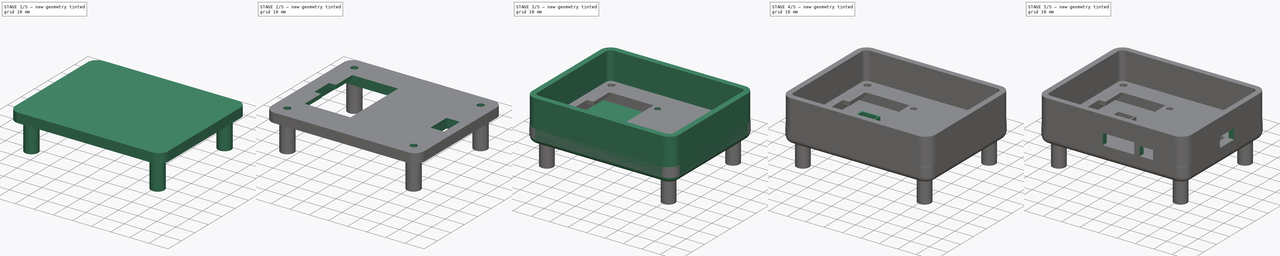
[diagram: build sequence overview — one tinted view per stage of 5, left to right]
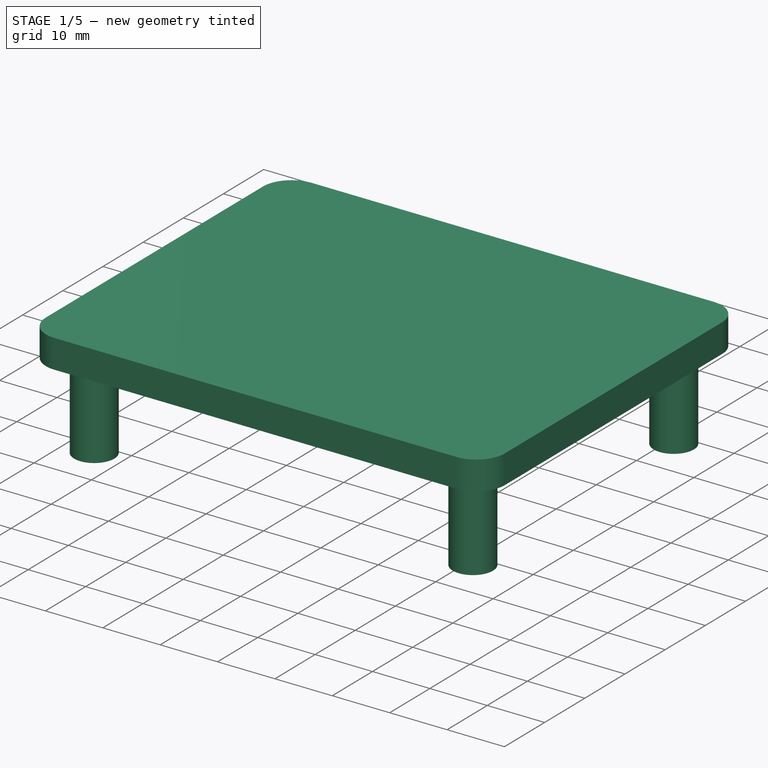
[diagram: stage 1 of 5 — iso view after this stage's code; geometry added in this stage tinted green]
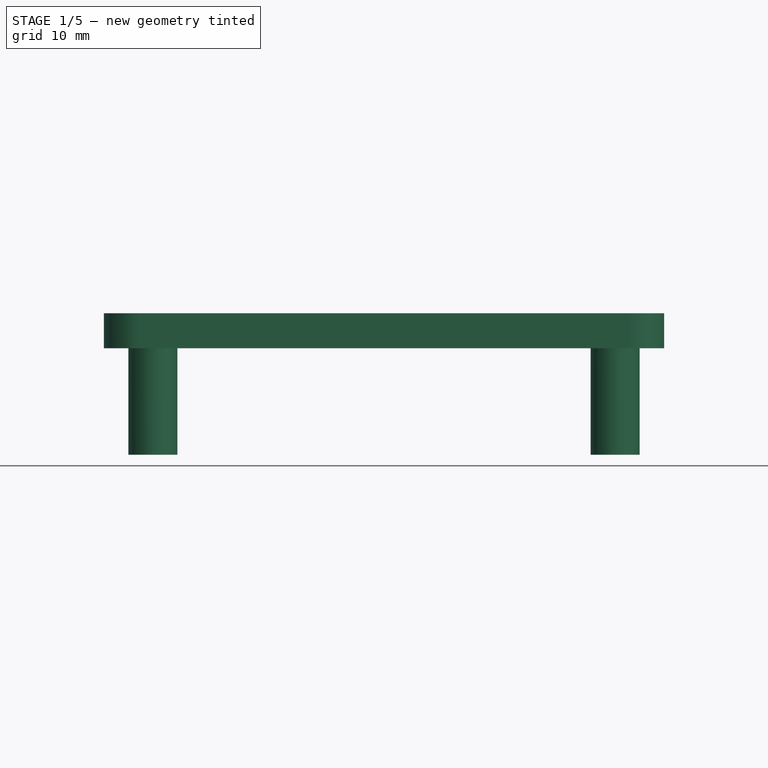
[diagram: stage 1 of 5 — front view after this stage's code; geometry added in this stage tinted green]
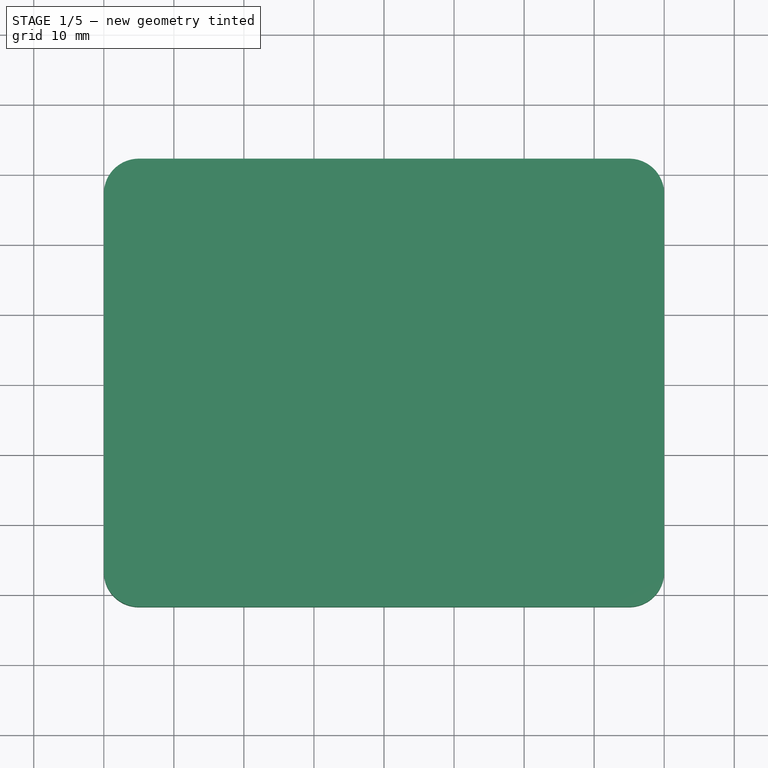
[diagram: stage 1 of 5 — top view after this stage's code; geometry added in this stage tinted green]
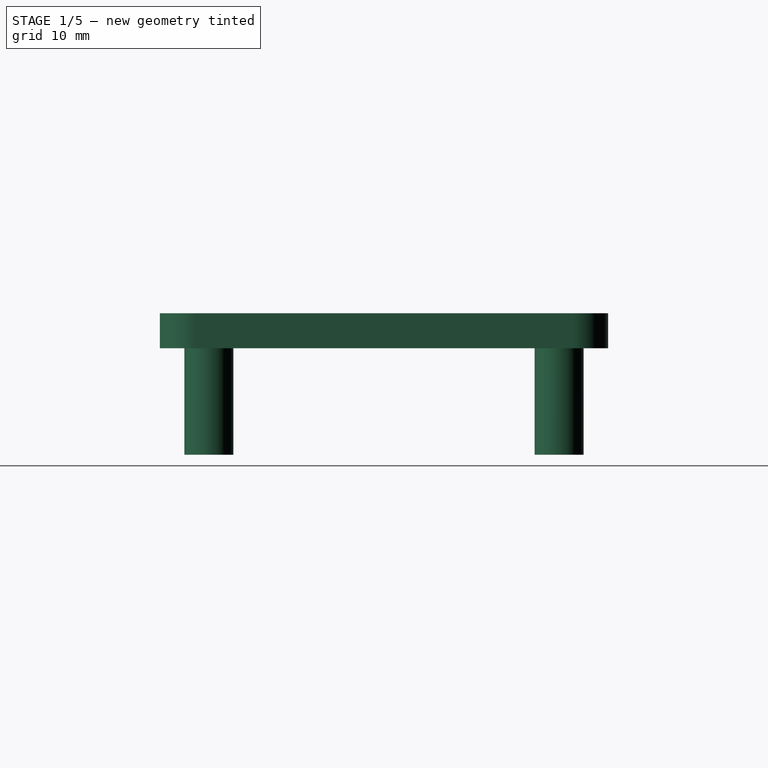
[diagram: stage 1 of 5 — right view after this stage's code; geometry added in this stage tinted green]
FCSTD DOCUMENT  (FreeCAD 0.20R29603 (Git))
Label: pcb_box_top
License: All rights reserved
LicenseURL: http://en.wikipedia.org/wiki/All_rights_reserved
objects: Part::Feature×55, App::Part×55, Sketcher::SketchObject×13, PartDesign::Pocket×6, PartDesign::Pad×5, PartDesign::Hole×4, PartDesign::Body×2, PartDesign::Mirrored×2, Spreadsheet::Sheet×1, PartDesign::Thickness×1, PartDesign::MultiTransform×1
note: 105 computed .brp shape members not serialized (recipe doc carries the construction recipe); baked Part::Feature solids carry a one-line shape summary decoded from their .brp

FEATURE [PartDesign::Body] Body
  Group = -> [Sketch,Pad,Thickness,Sketch001,Pad001,Hole,Sketch002,Pad002,Sketch003,Hole001,Sketch004,Pocket,Sketch005,Pocket001,Sketch006,Pocket002]
  Origin = -> Origin
  Tip = -> Pocket002
FEATURE [Part::Feature] Part__Feature  label="SOLID"
  shape: bbox 1.6 x 0.8 x 1.1 mm, 50 faces (baked)
FEATURE [App::Part] LED_0603_1608Metric
  Group = -> [Part__Feature]
  Origin = -> Origin001
  Placement = pos=(55.2,18.76,1.63) rot=(0,0,-1;1.5708rad)
FEATURE [Part::Feature] Part__Feature001  label="SOLID001"
  shape: bbox 1 x 0.5 x 0.35 mm, 26 faces (baked)
FEATURE [App::Part] R_0402_1005Metric
  Group = -> [Part__Feature001]
  Origin = -> Origin002
  Placement = pos=(32.152,20.312,1.63) rot=(0,0,1;3.14159rad)
FEATURE [Part::Feature] Part__Feature002  label="SOLID002"
  shape: bbox 7.3 x 4.627 x 3.1 mm, 46 faces (baked)
FEATURE [App::Part] CP_EIA_7343_31_Kemet_D  label="CP_EIA-7343-31_Kemet-D"
  Group = -> [Part__Feature002]
  Origin = -> Origin003
  Placement = pos=(47.298,24.884,1.63) rot=(0,0,1;0rad)
FEATURE [Part::Feature] Part__Feature003  label="SOLID003"
  shape: bbox 1.6 x 0.8 x 1.1 mm, 50 faces (baked)
FEATURE [App::Part] LED_0603_1608Metric001
  Group = -> [Part__Feature003]
  Origin = -> Origin004
  Placement = pos=(39.2125,13.8,1.63) rot=(0,0,1;3.14159rad)
FEATURE [Part::Feature] Part__Feature004  label="SOLID004"
  shape: bbox 1.6 x 0.8 x 0.8 mm, 28 faces (baked)
FEATURE [App::Part] L_0603_1608Metric
  Group = -> [Part__Feature004]
  Origin = -> Origin005
  Placement = pos=(17.42,33.4817,1.63) rot=(0,0,-1;1.5708rad)
FEATURE [Part::Feature] Part__Feature005  label="SOLID005"
  shape: bbox 1 x 0.5 x 0.35 mm, 26 faces (baked)
FEATURE [App::Part] R_0402_1005Metric001
  Group = -> [Part__Feature005]
  Origin = -> Origin006
  Placement = pos=(26.9748,38.5972,1.63) rot=(0,0,1;1.5708rad)
FEATURE [Part::Feature] Part__Feature006  label="SOLID006"
  shape: bbox 1.6 x 0.8 x 0.8 mm, 28 faces (baked)
FEATURE [App::Part] C_0603_1608Metric
  Group = -> [Part__Feature006]
  Origin = -> Origin007
  Placement = pos=(32.66,23.36,1.63) rot=(0,0,-1;1.5708rad)
FEATURE [Part::Feature] Part__Feature007  label="SOLID007"
  shape: bbox 7 x 6.5 x 1.7 mm, 78 faces (baked)
FEATURE [App::Part] SOT_223  label="SOT-223"
  Group = -> [Part__Feature007]
  Origin = -> Origin008
  Placement = pos=(31.136,33.012,1.63) rot=(0,0,1;3.14159rad)
FEATURE [Part::Feature] Part__Feature008  label="SOLID008"
  shape: bbox 1 x 0.5 x 0.5 mm, 28 faces (baked)
FEATURE [App::Part] C_0402_1005Metric
  Group = -> [Part__Feature008]
  Origin = -> Origin009
  Placement = pos=(51.48,11,1.63) rot=(0,0,1;3.14159rad)
FEATURE [Part::Feature] Part__Feature009  label="SOLID009"
  shape: bbox 2.54 x 10.16 x 10.1 mm, 134 faces (baked)
FEATURE [App::Part] PinSocket_1x04_P2_54mm_Vertical  label="PinSocket_1x04_P2.54mm_Vertical"
  Group = -> [Part__Feature009]
  Origin = -> Origin010
  Placement = pos=(-0.5,33.9,1.63) rot=(0,0,1;0rad)
FEATURE [Part::Feature] Part__Feature010  label="SOLID010"
  shape: bbox 1 x 0.5 x 0.5 mm, 28 faces (baked)
FEATURE [App::Part] C_0402_1005Metric001
  Group = -> [Part__Feature010]
  Origin = -> Origin011
  Placement = pos=(19.96,32.542,1.63) rot=(0,0,1;1.5708rad)
FEATURE [Part::Feature] Part__Feature011  label="SOLID011"
  shape: bbox 5.9 x 7.6 x 8.25 mm, 110 faces (baked)
FEATURE [App::Part] JST_PH_S2B_PH_K_1x02_P2_00mm_Horizontal  label="JST_PH_S2B-PH-K_1x02_P2.00mm_Horizontal"
  Group = -> [Part__Feature011]
  Origin = -> Origin012
  Placement = pos=(50.5,7.8,1.63) rot=(0,0,1;0rad)
FEATURE [Part::Feature] Part__Feature012  label="SOLID012"
  shape: bbox 1 x 0.5 x 0.5 mm, 28 faces (baked)
FEATURE [App::Part] C_0402_1005Metric002
  Group = -> [Part__Feature012]
  Origin = -> Origin013
  Placement = pos=(40.72,11,1.63) rot=(0,0,1;3.14159rad)
FEATURE [Part::Feature] Part__Feature013  label="SOLID013"
  shape: bbox 3.2 x 1.6 x 1.6 mm, 28 faces (baked)
FEATURE [App::Part] C_1206_3216Metric
  Group = -> [Part__Feature013]
  Origin = -> Origin014
  Placement = pos=(50.8836,36.0552,1.63) rot=(0,0,1;3.14159rad)
FEATURE [Part::Feature] Part__Feature014  label="SOLID014"
  shape: bbox 7.4 x 11.5 x 9.5 mm, 105 faces (baked)
FEATURE [App::Part] JST_XH_S2B_XH_A_1_1x02_P2_50mm_Horizontal  label="JST_XH_S2B-XH-A-1_1x02_P2.50mm_Horizontal"
  Group = -> [Part__Feature014]
  Origin = -> Origin015
  Placement = pos=(39.5,5.9,1.63) rot=(0,0,1;0rad)
FEATURE [Part::Feature] Part__Feature015  label="SOLID015"
  shape: bbox 1 x 0.5 x 0.35 mm, 26 faces (baked)
FEATURE [App::Part] R_0402_1005Metric002
  Group = -> [Part__Feature015]
  Origin = -> Origin016
  Placement = pos=(55.74,20.85,1.63) rot=(0,0,1;0rad)
FEATURE [Part::Feature] Part__Feature016  label="SOLID016"
  shape: bbox 2.54 x 7.62 x 11.54 mm, 76 faces (baked)
FEATURE [App::Part] PinHeader_1x03_P2_54mm_Vertical  label="PinHeader_1x03_P2.54mm_Vertical"
  Group = -> [Part__Feature016]
  Origin = -> Origin017
  Placement = pos=(-2.2,44.4,1.63) rot=(0,0,1;0rad)
FEATURE [Part::Feature] Part__Feature017  label="SOLID017"
  shape: bbox 3.2 x 1.6 x 1.6 mm, 28 faces (baked)
FEATURE [App::Part] C_1206_3216Metric001
  Group = -> [Part__Feature017]
  Origin = -> Origin018
  Placement = pos=(50.8836,33.5152,1.63) rot=(0,0,1;3.14159rad)
FEATURE [Part::Feature] Part__Feature018  label="SOLID018"
  shape: bbox 5.4 x 4.9 x 1.1 mm, 156 faces (baked)
FEATURE [App::Part] HTSOP_8_1EP_3_9x4_9mm_Pitch1_27mm  label="HTSOP-8-1EP_3.9x4.9mm_Pitch1.27mm"
  Group = -> [Part__Feature018]
  Origin = -> Origin019
  Placement = pos=(51.689,42.0572,1.63) rot=(0,0,-1;1.5708rad)
FEATURE [Part::Feature] Part__Feature019  label="SOLID019"
  shape: bbox 1 x 0.5 x 0.35 mm, 26 faces (baked)
FEATURE [App::Part] R_0402_1005Metric003
  Group = -> [Part__Feature019]
  Origin = -> Origin020
  Placement = pos=(32.152,19.296,1.63) rot=(0,0,1;3.14159rad)
FEATURE [Part::Feature] Part__Feature020  label="SOLID020"
  shape: bbox 1 x 0.5 x 0.5 mm, 28 faces (baked)
FEATURE [App::Part] C_0402_1005Metric003
  Group = -> [Part__Feature020]
  Origin = -> Origin021
  Placement = pos=(56.649,44.7462,1.63) rot=(0,0,1;0rad)
FEATURE [Part::Feature] Part__Feature021  label="SOLID021"
  shape: bbox 1 x 0.5 x 0.5 mm, 28 faces (baked)
FEATURE [App::Part] C_0402_1005Metric004
  Group = -> [Part__Feature021]
  Origin = -> Origin022
  Placement = pos=(32.8912,11.1806,1.63) rot=(0,0,1;3.14159rad)
FEATURE [Part::Feature] Part__Feature022  label="SOLID022"
  shape: bbox 1.6 x 0.8 x 0.8 mm, 28 faces (baked)
FEATURE [App::Part] C_0603_1608Metric001
  Group = -> [Part__Feature022]
  Origin = -> Origin023
  Placement = pos=(32.662,26.408,1.63) rot=(0,0,1;1.5708rad)
FEATURE [Part::Feature] Part__Feature023  label="SOLID023"
  shape: bbox 3.2 x 1.696 x 1.8 mm, 46 faces (baked)
FEATURE [App::Part] CP_EIA_3216_18_Kemet_A  label="CP_EIA-3216-18_Kemet-A"
  Group = -> [Part__Feature023]
  Origin = -> Origin024
  Placement = pos=(27.961,14.174,1.63) rot=(0,0,-1;1.5708rad)
FEATURE [Part::Feature] Part__Feature024  label="SOLID024"
  shape: bbox 1 x 0.5 x 0.5 mm, 28 faces (baked)
FEATURE [App::Part] C_0402_1005Metric005
  Group = -> [Part__Feature024]
  Origin = -> Origin025
  Placement = pos=(16.5836,36.0044,1.63) rot=(0,0,1;0rad)
FEATURE [Part::Feature] Part__Feature025  label="SOLID025"
  shape: bbox 1 x 0.5 x 0.35 mm, 26 faces (baked)
FEATURE [App::Part] R_0402_1005Metric004
  Group = -> [Part__Feature025]
  Origin = -> Origin026
  Placement = pos=(41.91,13.8,1.63) rot=(0,0,1;0rad)
FEATURE [Part::Feature] Part__Feature026  label="SOLID026"
  shape: bbox 3.2 x 1.696 x 1.8 mm, 46 faces (baked)
FEATURE [App::Part] CP_EIA_3216_18_Kemet_A001  label="CP_EIA-3216-18_Kemet-A001"
  Group = -> [Part__Feature026]
  Origin = -> Origin027
  Placement = pos=(49.85,17.9,1.63) rot=(0,0,1;0rad)
FEATURE [Part::Feature] Part__Feature027  label="SOLID027"
  shape: bbox 6.433 x 10.19 x 1.2 mm, 186 faces (baked)
FEATURE [App::Part] TSSOP_10_3x3mm_P0_5mm  label="TSSOP-10_3x3mm_P0.5mm"
  Group = -> [Part__Feature027]
  Origin = -> Origin028
  Placement = pos=(32.7073,14.3368,1.63) rot=(0,0,1;0rad)
FEATURE [Part::Feature] Part__Feature028  label="SOLID028"
  shape: bbox 1.6 x 0.8 x 0.8 mm, 28 faces (baked)
FEATURE [App::Part] C_0603_1608Metric002
  Group = -> [Part__Feature028]
  Origin = -> Origin029
  Placement = pos=(19.4266,35.0442,1.63) rot=(0,0,1;1.5708rad)
FEATURE [Part::Feature] Part__Feature029  label="SOLID029"
  shape: bbox 2.54 x 7.62 x 11.54 mm, 76 faces (baked)
FEATURE [App::Part] PinHeader_1x03_P2_54mm_Vertical001  label="PinHeader_1x03_P2.54mm_Vertical001"
  Group = -> [Part__Feature029]
  Origin = -> Origin030
  Placement = pos=(1.5,44.4,1.63) rot=(0,0,1;0rad)
FEATURE [Part::Feature] Part__Feature030  label="SOLID030"
  shape: bbox 1 x 0.5 x 0.5 mm, 28 faces (baked)
FEATURE [App::Part] C_0402_1005Metric006
  Group = -> [Part__Feature030]
  Origin = -> Origin031
  Placement = pos=(28.7,19.52,1.63) rot=(0,0,-1;1.5708rad)
FEATURE [Part::Feature] Part__Feature031  label="SOLID031"
  shape: bbox 1 x 0.5 x 0.35 mm, 26 faces (baked)
FEATURE [App::Part] R_0402_1005Metric005
  Group = -> [Part__Feature031]
  Origin = -> Origin032
  Placement = pos=(48.295,45.8872,1.63) rot=(0,0,-1;1.5708rad)
FEATURE [Part::Feature] Part__Feature032  label="SOLID032"
  shape: bbox 4.9 x 3 x 1 mm, 186 faces (baked)
FEATURE [App::Part] TSSOP_10_3x3mm_P0_5mm001  label="TSSOP-10_3x3mm_P0.5mm001"
  Group = -> [Part__Feature032]
  Origin = -> Origin033
  Placement = pos=(28.596,23.868,1.63) rot=(0,0,-1;1.5708rad)
FEATURE [Part::Feature] Part__Feature033  label="SOLID033"
  shape: bbox 4.5 x 3.2 x 2.5 mm, 28 faces (baked)
FEATURE [App::Part] L_1812_4532Metric
  Group = -> [Part__Feature033]
  Origin = -> Origin034
  Placement = pos=(51.851,48.8102,1.63) rot=(0,0,1;3.14159rad)
FEATURE [Part::Feature] Part__Feature034  label="SOLID034"
  shape: bbox 1 x 0.5 x 0.35 mm, 26 faces (baked)
FEATURE [App::Part] R_0402_1005Metric006
  Group = -> [Part__Feature034]
  Origin = -> Origin035
  Placement = pos=(29.1802,17.937,1.63) rot=(0,0,1;3.14159rad)
FEATURE [Part::Feature] Part__Feature035  label="SOLID035"
  shape: bbox 1.6 x 0.8 x 1.1 mm, 50 faces (baked)
FEATURE [App::Part] LED_0603_1608Metric002
  Group = -> [Part__Feature035]
  Origin = -> Origin036
  Placement = pos=(53.422,18.76,1.63) rot=(0,0,-1;1.5708rad)
FEATURE [Part::Feature] Part__Feature036  label="SOLID036"
  shape: bbox 1 x 0.5 x 0.35 mm, 26 faces (baked)
FEATURE [App::Part] R_0402_1005Metric007
  Group = -> [Part__Feature036]
  Origin = -> Origin037
  Placement = pos=(48.295,43.8552,1.63) rot=(0,0,-1;1.5708rad)
FEATURE [Part::Feature] Part__Feature037  label="SOLID037"
  shape: bbox 1 x 0.5 x 0.5 mm, 28 faces (baked)
FEATURE [App::Part] C_0402_1005Metric007
  Group = -> [Part__Feature037]
  Origin = -> Origin038
  Placement = pos=(33.648,37.584,1.63) rot=(0,0,1;3.14159rad)
FEATURE [Part::Feature] Part__Feature038  label="SOLID038"
  shape: bbox 6.433 x 10.19 x 1.2 mm, 186 faces (baked)
FEATURE [App::Part] TSSOP_10_3x3mm_P0_5mm002  label="TSSOP-10_3x3mm_P0.5mm002"
  Group = -> [Part__Feature038]
  Origin = -> Origin039
  Placement = pos=(51.17,14.1625,1.63) rot=(0,0,1;0rad)
FEATURE [Part::Feature] Part__Feature039  label="SOLID039"
  shape: bbox 2.54 x 5.08 x 11.54 mm, 52 faces (baked)
FEATURE [App::Part] PinHeader_1x02_P2_54mm_Vertical  label="PinHeader_1x02_P2.54mm_Vertical"
  Group = -> [Part__Feature039]
  Origin = -> Origin040
  Placement = pos=(43.525,46.35,1.63) rot=(0,0,-1;1.5708rad)
FEATURE [Part::Feature] Part__Feature040  label="SOLID040"
  shape: bbox 5 x 2.7 x 2.22 mm, 41 faces (baked)
FEATURE [App::Part] D_SMA
  Group = -> [Part__Feature040]
  Origin = -> Origin041
  Placement = pos=(56.423,40.3332,1.63) rot=(0,0,1;1.5708rad)
FEATURE [Part::Feature] Part__Feature041  label="SOLID041"
  shape: bbox 3.2 x 1.6 x 1.6 mm, 28 faces (baked)
FEATURE [App::Part] C_1206_3216Metric002
  Group = -> [Part__Feature041]
  Origin = -> Origin042
  Placement = pos=(46.609,45.328,1.63) rot=(0,0,-1;1.5708rad)
FEATURE [Part::Feature] Part__Feature042  label="SOLID042"
  shape: bbox 8 x 6.31 x 2.575 mm, 191 faces (baked)
FEATURE [App::Part] SW_DIP_SPSTx04_Slide_Copal_CHS_04B_W7_62mm_P1_27mm  label="SW_DIP_SPSTx04_Slide_Copal_CHS-04B_W7.62mm_P1.27mm"
  Group = -> [Part__Feature042]
  Origin = -> Origin043
  Placement = pos=(31.496,43.599,1.63) rot=(0,0,1;0rad)
FEATURE [Part::Feature] Part__Feature043  label="SOLID043"
  shape: bbox 1.6 x 0.8 x 0.8 mm, 28 faces (baked)
FEATURE [App::Part] C_0603_1608Metric003
  Group = -> [Part__Feature043]
  Origin = -> Origin044
  Placement = pos=(37.232,30.98,1.63) rot=(0,0,-1;1.5708rad)
FEATURE [Part::Feature] Part__Feature044  label="SOLID044"
  shape: bbox 14 x 13.2 x 8.25 mm, 33 faces (baked)
FEATURE [App::Part] xr30_Body  label="xr30-Body"
  Group = -> [Part__Feature044]
  Origin = -> Origin045
  Placement = pos=(68.625,29.1,1.63) rot=(0,0,1;0rad)
FEATURE [Part::Feature] Part__Feature045  label="SOLID045"
  shape: bbox 2.54 x 12.7 x 11.54 mm, 124 faces (baked)
FEATURE [App::Part] PinHeader_1x05_P2_54mm_Vertical  label="PinHeader_1x05_P2.54mm_Vertical"
  Group = -> [Part__Feature045]
  Origin = -> Origin046
  Placement = pos=(0.656,19.5,1.63) rot=(0,0,1;0rad)
FEATURE [Part::Feature] Part__Feature046  label="SOLID046"
  shape: bbox 7.4 x 11.5 x 9.5 mm, 105 faces (baked)
FEATURE [App::Part] JST_XH_S2B_XH_A_1_1x02_P2_50mm_Horizontal001  label="JST_XH_S2B-XH-A-1_1x02_P2.50mm_Horizontal001"
  Group = -> [Part__Feature046]
  Origin = -> Origin047
  Placement = pos=(30.5,5.9,1.63) rot=(0,0,1;0rad)
FEATURE [Part::Feature] Part__Feature047  label="SOLID047"
  shape: bbox 1 x 0.5 x 0.5 mm, 28 faces (baked)
FEATURE [App::Part] C_0402_1005Metric008
  Group = -> [Part__Feature047]
  Origin = -> Origin048
  Placement = pos=(18.944,32.532,1.63) rot=(0,0,1;1.5708rad)
FEATURE [Part::Feature] Part__Feature048  label="SOLID048"
  shape: bbox 1.6 x 0.8 x 1.1 mm, 50 faces (baked)
FEATURE [App::Part] LED_0603_1608Metric003
  Group = -> [Part__Feature048]
  Origin = -> Origin049
  Placement = pos=(39.2125,15.4,1.63) rot=(0,0,1;3.14159rad)
FEATURE [Part::Feature] Part__Feature049  label="SOLID049"
  shape: bbox 1 x 0.5 x 0.35 mm, 26 faces (baked)
FEATURE [App::Part] R_0402_1005Metric008
  Group = -> [Part__Feature049]
  Origin = -> Origin050
  Placement = pos=(52.91,20.85,1.63) rot=(0,0,1;3.14159rad)
FEATURE [Part::Feature] Part__Feature050  label="COMPOUND"
  shape: bbox 21.43 x 52.44 x 16.21 mm, 7532 faces, 157 solids (baked)
FEATURE [App::Part] RPi_Pico_W_w_headers  label="RPi Pico W w_headers"
  Group = -> [Part__Feature050]
  Origin = -> Origin051
  Placement = pos=(4.347,2.563,11.63) rot=(0,0,1;0rad)
FEATURE [Part::Feature] Part__Feature051  label="SOLID050"
  shape: bbox 1 x 0.5 x 0.35 mm, 26 faces (baked)
FEATURE [App::Part] R_0402_1005Metric009
  Group = -> [Part__Feature051]
  Origin = -> Origin052
  Placement = pos=(41.91,15.4,1.63) rot=(0,0,1;0rad)
FEATURE [Part::Feature] Part__Feature052  label="SOLID051"
  shape: bbox 1 x 0.5 x 0.35 mm, 26 faces (baked)
FEATURE [App::Part] R_0402_1005Metric010
  Group = -> [Part__Feature052]
  Origin = -> Origin053
  Placement = pos=(27.58,18.4176,1.63) rot=(0,0,1;1.5708rad)
FEATURE [Part::Feature] Part__Feature053  label="COMPOUND001"
  shape: bbox 7 x 8.6 x 2.8 mm, 18 faces, 3 solids (baked)
FEATURE [App::Part] part_7x7mm_body  label="part_7x7mm-body"
  Group = -> [Part__Feature053]
  Origin = -> Origin054
  Placement = pos=(11.5,24.8,-0.05) rot=(0.707107,0.707107,0;3.14159rad)
FEATURE [Part::Feature] Part__Feature054  label="_autosave-motor_adapter PCB"
  shape: bbox 72 x 56 x 1.58 mm, 139 faces (baked)
FEATURE [App::Part] motor_adapter_1  label="motor_adapter 1"
  Group = -> [LED_0603_1608Metric,R_0402_1005Metric,CP_EIA_7343_31_Kemet_D,LED_0603_1608Metric001,L_0603_1608Metric,R_0402_1005Metric001,C_0603_1608Metric,SOT_223,C_0402_1005Metric,PinSocket_1x04_P2_54mm_Vertical,C_0402_1005Metric001,JST_PH_S2B_PH_K_1x02_P2_00mm_Horizontal,C_0402_1005Metric002,C_1206_3216Metric,JST_XH_S2B_XH_A_1_1x02_P2_50mm_Horizontal,R_0402_1005Metric002,PinHeader_1x03_P2_54mm_Vertical,+38 more]
  Origin = -> Origin055
  Placement = pos=(-32,-28,3) rot=(0,0,1;0rad)
  expr: .Placement.Base.x = -Spreadsheet.pcblength / 2 + 4
  expr: .Placement.Base.y = -Spreadsheet.pcbwidth / 2
  expr: .Placement.Base.z = Spreadsheet.pcbdepth
FEATURE [Sketcher::SketchObject] Sketch007
  FullyConstrained = true
  MapMode = 5
  Support = -> [XY_Plane056]
  expr: Constraints[16] = Spreadsheet.outer_boxradius
  expr: Constraints[17] = Spreadsheet.outer_width
  expr: Constraints[18] = Spreadsheet.outer_length
  expr: Constraints[19] = Spreadsheet.outer_length / 2
  expr: Constraints[20] = Spreadsheet.outer_width / 2
  sketch-geometry (9):
    g0: LineSegment StartX=-40 StartY=27 StartZ=0 EndX=-40 EndY=-27 EndZ=0
    g1: LineSegment StartX=-35 StartY=-32 StartZ=0 EndX=35 EndY=-32 EndZ=0
    g2: LineSegment StartX=40 StartY=-27 StartZ=0 EndX=40 EndY=27 EndZ=0
    g3: LineSegment StartX=35 StartY=32 StartZ=0 EndX=-35 EndY=32 EndZ=0
    g4: GeomPoint X=0 Y=0 Z=0
    g5: ArcOfCircle CenterX=-35 CenterY=27 CenterZ=0 NormalX=0 NormalY=0 NormalZ=1 AngleXU=0 Radius=5 StartAngle=1.5708 EndAngle=3.14159
    g6: ArcOfCircle CenterX=35 CenterY=27 CenterZ=0 NormalX=0 NormalY=0 NormalZ=1 AngleXU=0 Radius=5 StartAngle=0 EndAngle=1.5708
    g7: ArcOfCircle CenterX=35 CenterY=-27 CenterZ=0 NormalX=0 NormalY=0 NormalZ=1 AngleXU=0 Radius=5 StartAngle=4.71239 EndAngle=6.28319
    g8: ArcOfCircle CenterX=-35 CenterY=-27 CenterZ=0 NormalX=0 NormalY=0 NormalZ=1 AngleXU=0 Radius=5 StartAngle=3.14159 EndAngle=4.71239
  constraints (21):
    c: Horizontal(g1)
    c: Horizontal(g3)
    c: Vertical(g0)
    c: Vertical(g2)
    c: Coincident(g4,g-1)
    c: Tangent(g0,g5) = -1.5708
    c: Tangent(g3,g5) = -1.5708
    c: Tangent(g3,g6) = -1.5708
    c: Tangent(g2,g6) = -1.5708
    c: Tangent(g2,g7) = -1.5708
    c: Tangent(g1,g7) = -1.5708
    c: Tangent(g1,g8) = -1.5708
    c: Tangent(g0,g8) = -1.5708
    c: Equal(g8,g5)
    c: Equal(g5,g6)
    c: Equal(g6,g7)
    c: Radius(g5) = 5
    c: DistanceY(g1,g3) = 64
    c: DistanceX(g0,g2) = 80
    c: DistanceX(g0,g4) = 40
    c: DistanceY(g1,g4) = 32
FEATURE [PartDesign::Pad] Pad003
  Direction = (0,0,1)
  Length = 5
  Length2 = 10
  Profile = -> Sketch007
  ReferenceAxis = -> Sketch007 [N_Axis]
  Type = 0
FEATURE [Sketcher::SketchObject] Sketch008
  FullyConstrained = true
  MapMode = 5
  Placement = pos=(0,0,0) rot=(1,0,0;3.14159rad)
  Support = -> [Pad003]
  expr: Constraints[1] = Spreadsheet.pcblength / 2 - Spreadsheet.pcbhole_x
  expr: Constraints[2] = Spreadsheet.pcbwidth / 2 - Spreadsheet.pcbhole_y
  sketch-geometry (1):
    g0: Circle CenterX=-33 CenterY=25 CenterZ=0 NormalX=0 NormalY=0 NormalZ=1 AngleXU=0 Radius=3.5
  constraints (3):
    c: Diameter(g0) = 7
    c: DistanceX(g0,g-1) = 33
    c: DistanceY(g-1,g0) = 25
FEATURE [PartDesign::Pad] Pad004
  BaseFeature = -> Pad003
  Direction = (0,0,-1)
  Length = 15.2
  Length2 = 10
  Profile = -> Sketch008
  ReferenceAxis = -> Sketch008 [N_Axis]
  Type = 0
FEATURE [PartDesign::Mirrored] Mirrored
  MirrorPlane = -> YZ_Plane056
FEATURE [PartDesign::Mirrored] Mirrored001
  MirrorPlane = -> XZ_Plane056
FEATURE [PartDesign::MultiTransform] MultiTransform
  BaseFeature = -> Pad004
  Originals = -> [Pad004]
  Transformations = -> [Mirrored,Mirrored001]
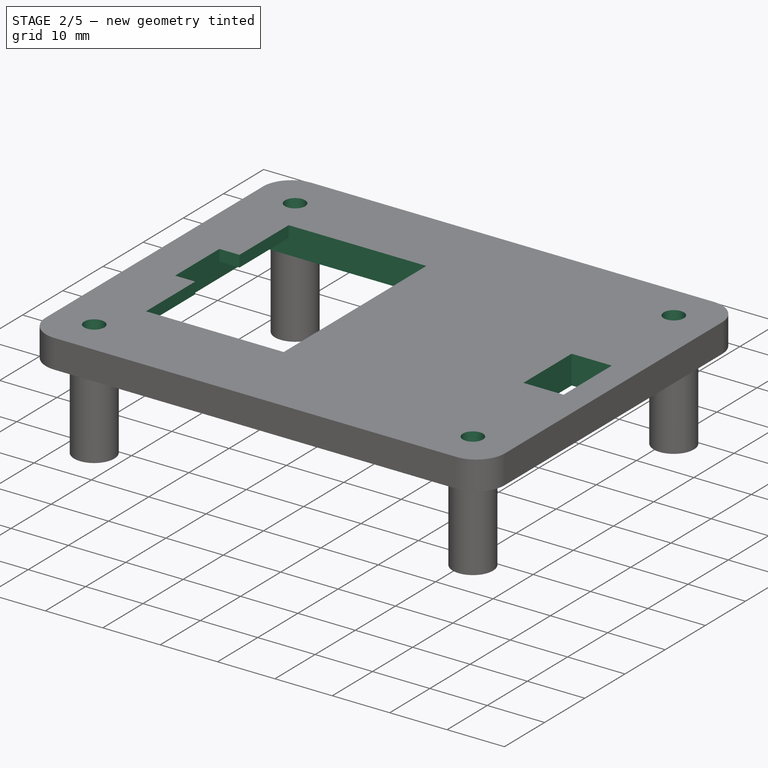
[diagram: stage 2 of 5 — iso view after this stage's code; geometry added in this stage tinted green]
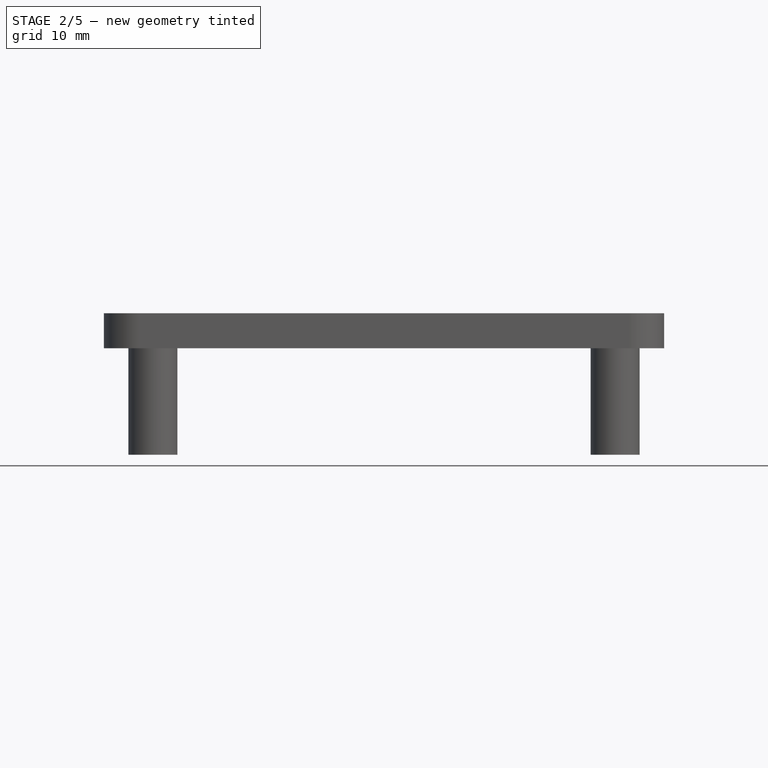
[diagram: stage 2 of 5 — front view after this stage's code; geometry added in this stage tinted green]
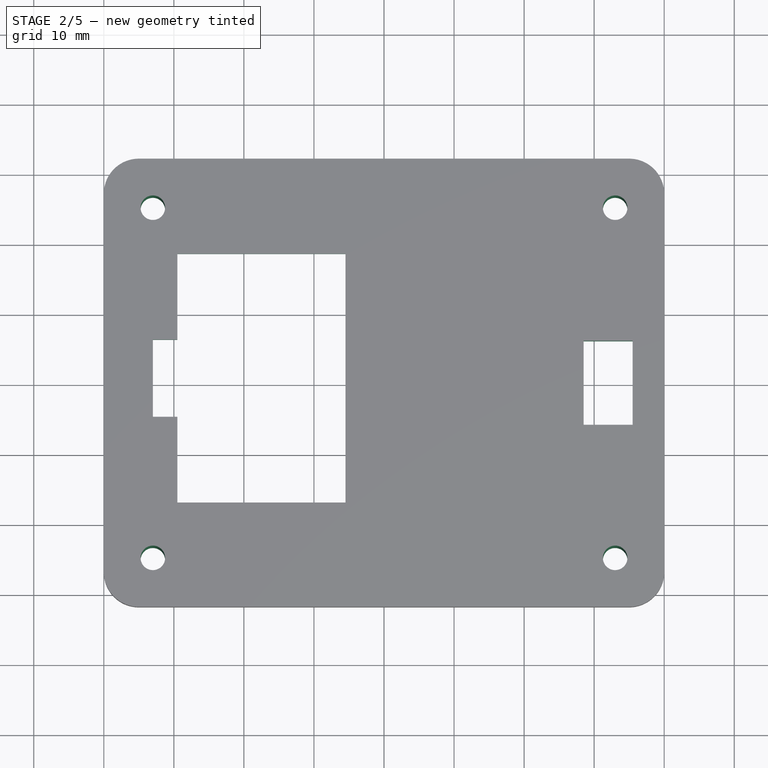
[diagram: stage 2 of 5 — top view after this stage's code; geometry added in this stage tinted green]
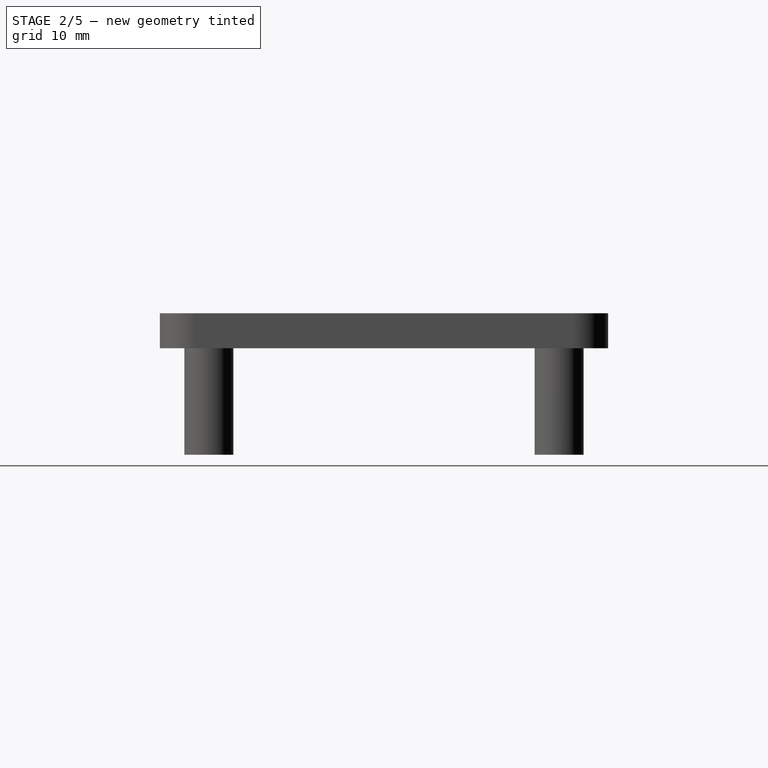
[diagram: stage 2 of 5 — right view after this stage's code; geometry added in this stage tinted green]
FEATURE [PartDesign::Hole] Hole002
  BaseFeature = -> MultiTransform
  CustomThreadClearance = 0
  Depth = 25
  DepthType = 0
  Diameter = 3.5
  DrillForDepth = false
  DrillPoint = 1
  DrillPointAngle = 118
  HoleCutCountersinkAngle = 90
  HoleCutCustomValues = false
  HoleCutDepth = 0
  HoleCutDiameter = 6.1
  HoleCutType = 0
  ModelThread = false
  Profile = -> MultiTransform [Face15,Face17,Face18,Face16]
  Tapered = false
  TaperedAngle = 90
  ThreadClass = 0
  ThreadDepth = 25
  ThreadDepthType = 0
  ThreadDirection = 0
  ThreadFit = 0
  ThreadSize = 0
  ThreadType = 0
  Threaded = false
  UseCustomThreadClearance = false
FEATURE [Sketcher::SketchObject] Sketch009
  FullyConstrained = true
  MapMode = 5
  Placement = pos=(0,0,0) rot=(1,0,0;3.14159rad)
  Support = -> [Hole002]
  expr: Constraints[10] = Spreadsheet.outer_width / 2 - 13.6 + 0.5
  expr: Constraints[11] = Spreadsheet.outer_length / 2 - 7 + 0.5
  sketch-geometry (4):
    g0: LineSegment StartX=-33.5 StartY=17.5 StartZ=0 EndX=1.5 EndY=17.5 EndZ=0
    g1: LineSegment StartX=1.5 StartY=17.5 StartZ=0 EndX=1.5 EndY=-18.9 EndZ=0
    g2: LineSegment StartX=1.5 StartY=-18.9 StartZ=0 EndX=-33.5 EndY=-18.9 EndZ=0
    g3: LineSegment StartX=-33.5 StartY=-18.9 StartZ=0 EndX=-33.5 EndY=17.5 EndZ=0
  constraints (12):
    c: Coincident(g0,g1)
    c: Coincident(g1,g2)
    c: Coincident(g2,g3)
    c: Coincident(g3,g0)
    c: Horizontal(g0)
    c: Horizontal(g2)
    c: Vertical(g1)
    c: Vertical(g3)
    c: DistanceX(g2,g2) = 35
    c: DistanceY(g3,g3) = 36.4
    c: DistanceY(g2,g-1) = 18.9
    c: DistanceX(g0,g-1) = 33.5
FEATURE [PartDesign::Pocket] Pocket003
  BaseFeature = -> Hole002
  Direction = (0,0,1)
  Length = 3
  Length2 = 5
  Profile = -> Sketch009
  ReferenceAxis = -> Sketch009 [N_Axis]
  Type = 0
FEATURE [Sketcher::SketchObject] Sketch010
  FullyConstrained = true
  MapMode = 5
  Placement = pos=(3.4e-15,0,-15.2) rot=(1,0,0;3.14159rad)
  Support = -> [Pocket003]
  expr: Constraints[10] = Spreadsheet.outer_length / 2 - 10.5
  expr: Constraints[23] = (35.5 - 11) / 2
  expr: Constraints[9] = Spreadsheet.outer_width / 2 - 13.6
  sketch-geometry (8):
    g0: LineSegment StartX=-29.5 StartY=17.1 StartZ=0 EndX=-5.5 EndY=17.1 EndZ=0
    g1: LineSegment StartX=-5.5 StartY=17.1 StartZ=0 EndX=-5.5 EndY=-18.4 EndZ=0
    g2: LineSegment StartX=-5.5 StartY=-18.4 StartZ=0 EndX=-29.5 EndY=-18.4 EndZ=0
    g3: LineSegment StartX=-29.5 StartY=-18.4 StartZ=0 EndX=-29.5 EndY=-6.15 EndZ=0
    g4: LineSegment StartX=-29.5 StartY=-6.15 StartZ=0 EndX=-33 EndY=-6.15 EndZ=0
    g5: LineSegment StartX=-33 StartY=-6.15 StartZ=0 EndX=-33 EndY=4.85 EndZ=0
    g6: LineSegment StartX=-33 StartY=4.85 StartZ=0 EndX=-29.5 EndY=4.85 EndZ=0
    g7: LineSegment StartX=-29.5 StartY=4.85 StartZ=0 EndX=-29.5 EndY=17.1 EndZ=0
  constraints (24):
    c: Coincident(g0,g1)
    c: Coincident(g1,g2)
    c: Coincident(g2,g3)
    c: Horizontal(g0)
    c: Horizontal(g2)
    c: Vertical(g1)
    c: Vertical(g3)
    c: DistanceX(g2,g2) = 24
    c: DistanceY(g1,g1) = 35.5
    c: DistanceY(g1,g-1) = 18.4
    c: DistanceX(g0,g-1) = 29.5
    c: Coincident(g3,g4)
    c: Horizontal(g4)
    c: Coincident(g4,g5)
    c: Vertical(g5)
    c: Coincident(g5,g6)
    c: Horizontal(g6)
    c: Coincident(g6,g7)
    c: Coincident(g7,g0)
    c: Vertical(g7)
    c: DistanceY(g5,g5) = 11
    c: DistanceX(g4,g4) = 3.5
    c: Vertical(g3,g6)
    c: DistanceY(g2,g3) = 12.25
FEATURE [PartDesign::Pocket] Pocket004
  BaseFeature = -> Pocket003
  Direction = (-2e-16,0,1)
  Length = 5
  Length2 = 5
  Profile = -> Sketch010
  ReferenceAxis = -> Sketch010 [N_Axis]
  Type = 1
FEATURE [Sketcher::SketchObject] Sketch011
  FullyConstrained = true
  MapMode = 5
  Placement = pos=(0,0,0) rot=(1,0,0;3.14159rad)
  Support = -> [Pocket004]
  expr: Constraints[8] = Spreadsheet.outer_length / 2 - 11.5
  sketch-geometry (4):
    g0: LineSegment StartX=28.5 StartY=6 StartZ=0 EndX=35.5 EndY=6 EndZ=0
    g1: LineSegment StartX=35.5 StartY=6 StartZ=0 EndX=35.5 EndY=-6 EndZ=0
    g2: LineSegment StartX=35.5 StartY=-6 StartZ=0 EndX=28.5 EndY=-6 EndZ=0
    g3: LineSegment StartX=28.5 StartY=-6 StartZ=0 EndX=28.5 EndY=6 EndZ=0
  constraints (12):
    c: Coincident(g0,g1)
    c: Coincident(g1,g2)
    c: Coincident(g2,g3)
    c: Coincident(g3,g0)
    c: Horizontal(g0)
    c: Horizontal(g2)
    c: Vertical(g1)
    c: Vertical(g3)
    c: DistanceX(g-1,g2) = 28.5
    c: DistanceX(g2,g2) = 7
    c: DistanceY(g1,g1) = 12
    c: DistanceY(g1,g-1) = 6
FEATURE [PartDesign::Pocket] Pocket005
  BaseFeature = -> Pocket004
  Direction = (0,0,1)
  Length = 5
  Length2 = 5
  Profile = -> Sketch011
  ReferenceAxis = -> Sketch011 [N_Axis]
  Type = 0
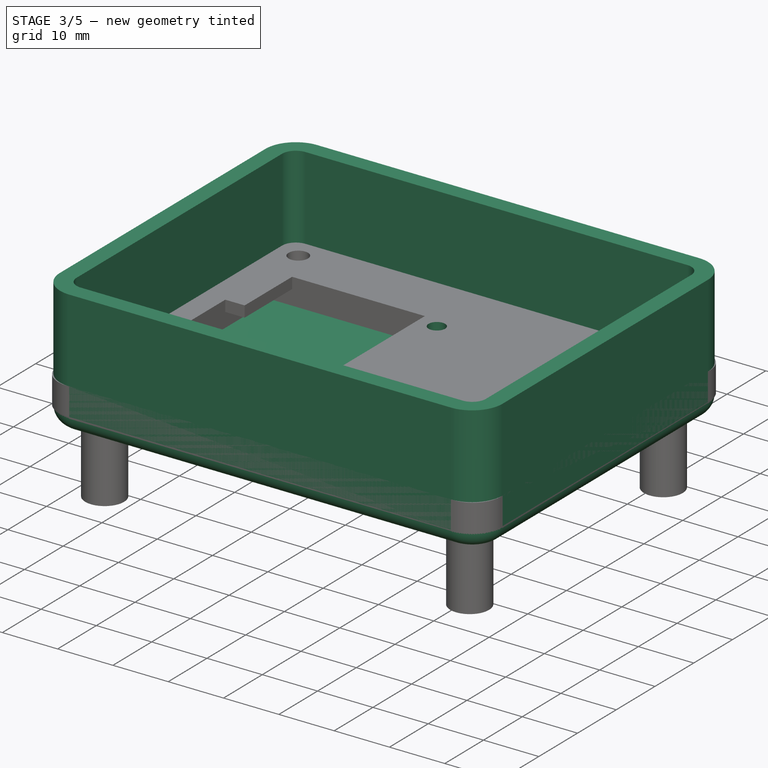
[diagram: stage 3 of 5 — iso view after this stage's code; geometry added in this stage tinted green]
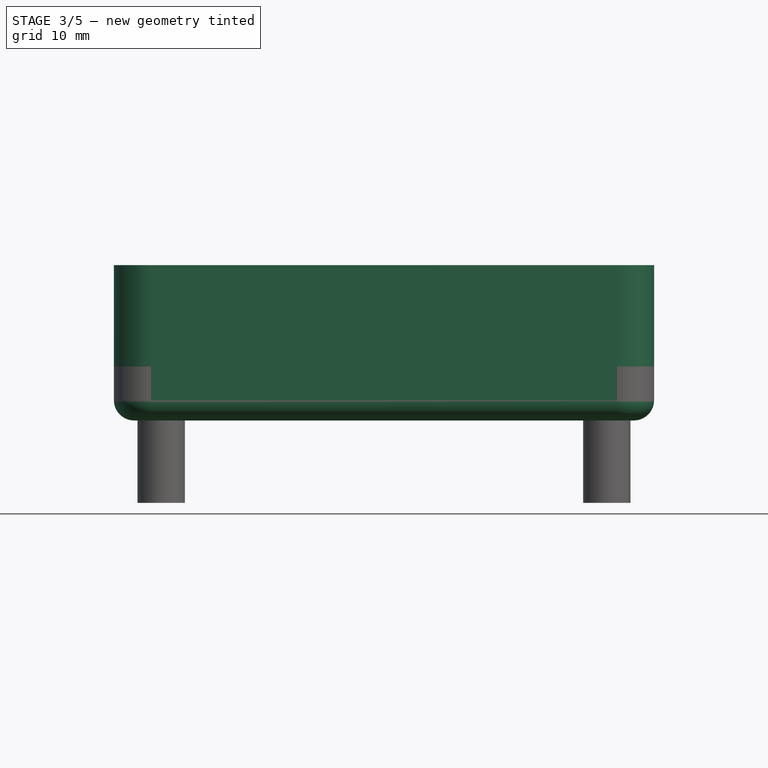
[diagram: stage 3 of 5 — front view after this stage's code; geometry added in this stage tinted green]
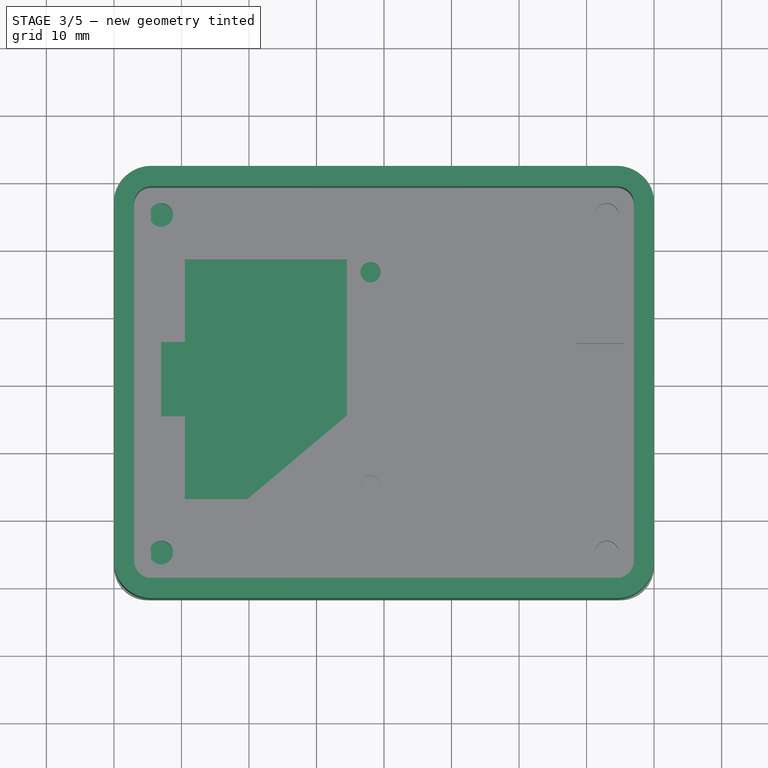
[diagram: stage 3 of 5 — top view after this stage's code; geometry added in this stage tinted green]
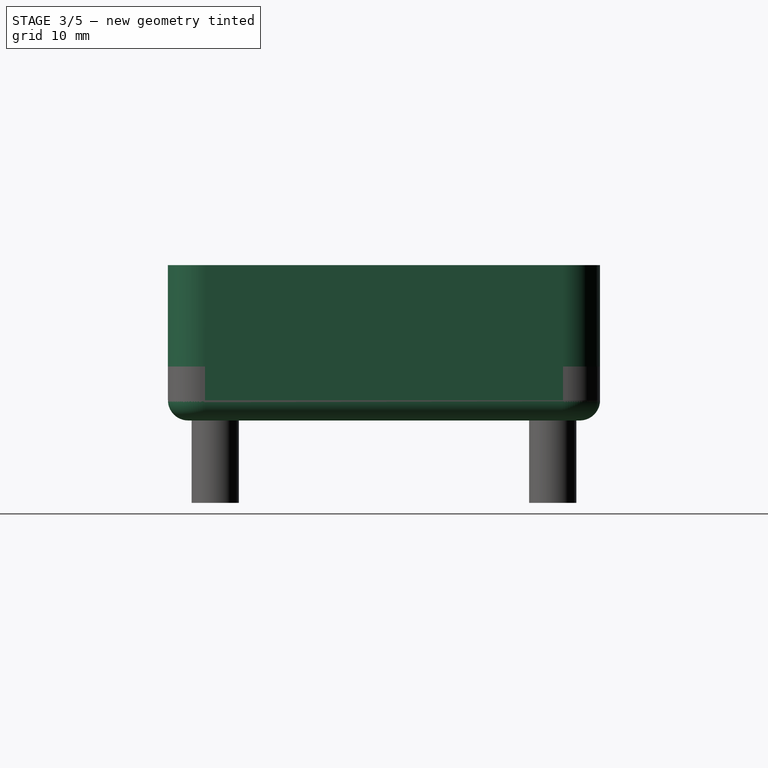
[diagram: stage 3 of 5 — right view after this stage's code; geometry added in this stage tinted green]
FEATURE [Sketcher::SketchObject] Sketch
  FullyConstrained = true
  MapMode = 5
  Support = -> [XY_Plane]
  expr: Constraints[20] = Spreadsheet.inner_width
  expr: Constraints[21] = Spreadsheet.inner_length
  expr: Constraints[22] = Spreadsheet.outer_boxradius
  sketch-geometry (10):
    g0: ArcOfCircle CenterX=-34.5 CenterY=26.5 CenterZ=0 NormalX=0 NormalY=0 NormalZ=1 AngleXU=0 Radius=2.5 StartAngle=1.5708 EndAngle=3.14159
    g1: LineSegment StartX=-34.5 StartY=29 StartZ=0 EndX=34.5 EndY=29 EndZ=0
    g2: ArcOfCircle CenterX=34.5 CenterY=26.5 CenterZ=0 NormalX=0 NormalY=0 NormalZ=1 AngleXU=0 Radius=2.5 StartAngle=1.2e-15 EndAngle=1.5708
    g3: LineSegment StartX=37 StartY=26.5 StartZ=0 EndX=37 EndY=-26.5 EndZ=0
    g4: ArcOfCircle CenterX=34.5 CenterY=-26.5 CenterZ=0 NormalX=0 NormalY=0 NormalZ=1 AngleXU=0 Radius=2.5 StartAngle=4.71239 EndAngle=6.28319
    g5: LineSegment StartX=34.5 StartY=-29 StartZ=0 EndX=-34.5 EndY=-29 EndZ=0
    g6: ArcOfCircle CenterX=-34.5 CenterY=-26.5 CenterZ=0 NormalX=0 NormalY=0 NormalZ=1 AngleXU=0 Radius=2.5 StartAngle=3.14159 EndAngle=4.71239
    g7: LineSegment StartX=-37 StartY=-26.5 StartZ=0 EndX=-37 EndY=26.5 EndZ=0
    g8: GeomPoint X=-37 Y=29 Z=0
    g9: GeomPoint X=37 Y=-29 Z=0
  constraints (23):
    c: Tangent(g0,g1) = 1.5708
    c: Tangent(g1,g2) = 1.5708
    c: Tangent(g2,g3) = 1.5708
    c: Tangent(g3,g4) = 1.5708
    c: Tangent(g4,g5) = 1.5708
    c: Tangent(g5,g6) = 1.5708
    c: Tangent(g6,g7) = 1.5708
    c: Tangent(g7,g0) = 1.5708
    c: Horizontal(g1)
    c: Horizontal(g5)
    c: Vertical(g3)
    c: Vertical(g7)
    c: Equal(g0,g2)
    c: Equal(g2,g4)
    c: Equal(g4,g6)
    c: PointOnObject(g8,g1)
    c: PointOnObject(g8,g7)
    c: PointOnObject(g9,g3)
    c: PointOnObject(g9,g5)
    c: Symmetric(g0,g4,g-1)
    c: DistanceY(g5,g0) = 58
    c: DistanceX(g0,g2) = 74
    c: Diameter(g2) = 5
FEATURE [Spreadsheet::Sheet] Spreadsheet
  cells = A1=screw; B1(screw)=3.5; C1=set; A2=pcbwidth; B2(pcbwidth)=56; C2=set; A3=pcblength; B3(pcblength)=72; C3=set; A4=pcbhole_x; B4(pcbhole_x)=3; C4=set; A5=pcbhole_y; B5(pcbhole_y)=3; C5=set; A6=pcbdepth; B6(pcbdepth)=3; C6=set; A7=pcbheight; B7(pcbheight)=15; C7=set; A8=clearance_x; B8(clearance_x)=1; C8=set; A9=clearance_y; B9(clearance_y)=1; C9=set; A10=wallthickness; B10(wallthickness)=3; C10=set; A11=walloffset; B11(walloffset)=2; C11=set UNUSED; A12=outer_length; B12(outer_length)==pcblength + 2 * (clearance_x + wallthickness); A13=inner_length; B13(inner_length)==pcblength + 2 * clearance_x; A14=outer_width; B14(outer_width)==pcbwidth + 2 * (clearance_y + wallthickness); A15=inner_width; B15(inner_width)==pcbwidth + 2 * clearance_y; A16=outer_boxradius; B16(outer_boxradius)==wallthickness + 2; A17=inner_boxradius; B17(inner_boxradius)==wallthickness - 1; A18=bottomthickness; B18(bottomthickness)=3; C18=set; A19=outer_height; B19(outer_height)==pcbdepth + pcbheight + 2
FEATURE [PartDesign::Pad] Pad  label="PCBEnclosure"
  Direction = (0,0,1)
  Length = 20
  Length2 = 10
  Profile = -> Sketch
  ReferenceAxis = -> Sketch [N_Axis]
  Type = 0
  expr: Length = Spreadsheet.outer_height
FEATURE [PartDesign::Thickness] Thickness
  Base = -> Pad [Face10]
  BaseFeature = -> Pad
  Intersection = false
  Join = 0
  Mode = 0
  SupportTransform = false
  Value = 3
  expr: Value = Spreadsheet.wallthickness
FEATURE [Sketcher::SketchObject] Sketch012
  FullyConstrained = true
  MapMode = 5
  Placement = pos=(0,0,3) rot=(1,0,0;3.14159rad)
  Support = -> [Pocket005]
  expr: Constraints[4] = Spreadsheet.outer_length / 2 - 38
  expr: Constraints[5] = Spreadsheet.outer_width / 2 - 15.5
  sketch-geometry (2):
    g0: Circle CenterX=-2 CenterY=15.1 CenterZ=0 NormalX=0 NormalY=0 NormalZ=1 AngleXU=0 Radius=1.5
    g1: Circle CenterX=-2 CenterY=-16.5 CenterZ=0 NormalX=0 NormalY=0 NormalZ=1 AngleXU=0 Radius=1.5
  constraints (6):
    c: Diameter(g0) = 3
    c: Diameter(g1) = 3
    c: DistanceY(g1,g0) = 31.6
    c: Vertical(g0,g1)
    c: DistanceX(g0,g-1) = 2
    c: DistanceY(g1,g-1) = 16.5
FEATURE [PartDesign::Hole] Hole003
  BaseFeature = -> Pocket005
  CustomThreadClearance = 0
  Depth = 25
  DepthType = 0
  Diameter = 3
  DrillForDepth = false
  DrillPoint = 1
  DrillPointAngle = 118
  HoleCutCountersinkAngle = 90
  HoleCutCustomValues = false
  HoleCutDepth = 0
  HoleCutDiameter = 6.1
  HoleCutType = 0
  ModelThread = false
  Profile = -> Sketch012
  Tapered = false
  TaperedAngle = 90
  ThreadClass = 0
  ThreadDepth = 25
  ThreadDepthType = 0
  ThreadDirection = 0
  ThreadFit = 0
  ThreadSize = 0
  ThreadType = 0
  Threaded = false
  UseCustomThreadClearance = false
FEATURE [PartDesign::Body] Body001  label="lid"
  Group = -> [Sketch007,Pad003,Sketch008,Pad004,MultiTransform,Mirrored,Mirrored001,Hole002,Sketch009,Pocket003,Sketch010,Pocket004,Sketch011,Pocket005,Sketch012,Hole003]
  Origin = -> Origin056
  Placement = pos=(0,0,20) rot=(0,0,1;0rad)
  Tip = -> Hole003
  expr: .Placement.Base.z = Spreadsheet.outer_height
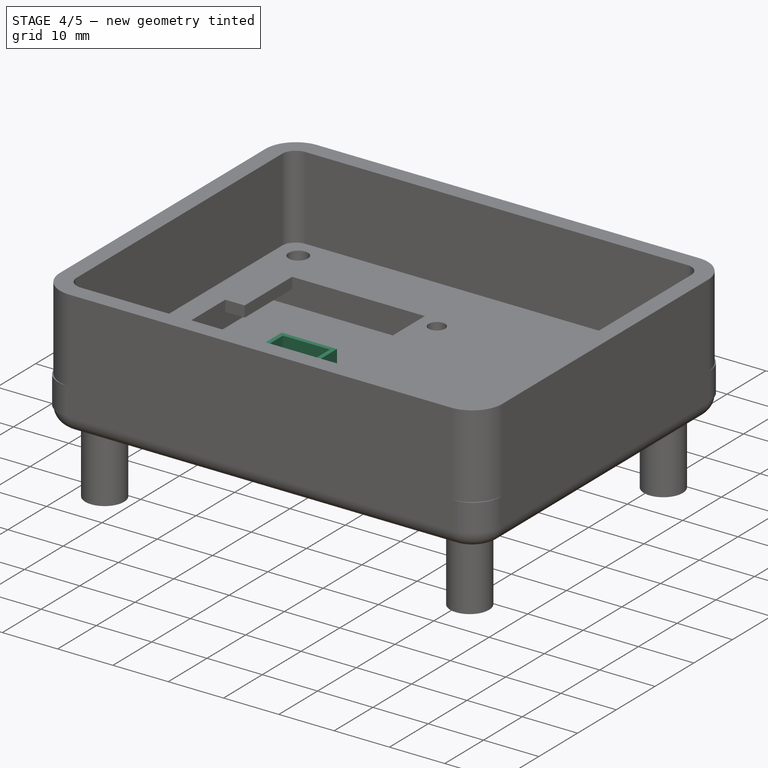
[diagram: stage 4 of 5 — iso view after this stage's code; geometry added in this stage tinted green]
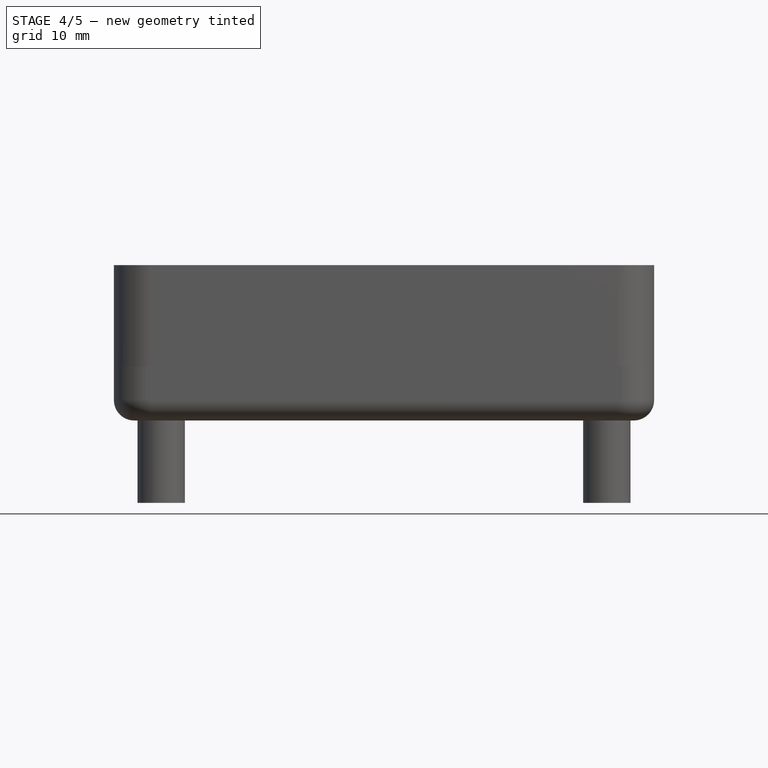
[diagram: stage 4 of 5 — front view after this stage's code; geometry added in this stage tinted green]
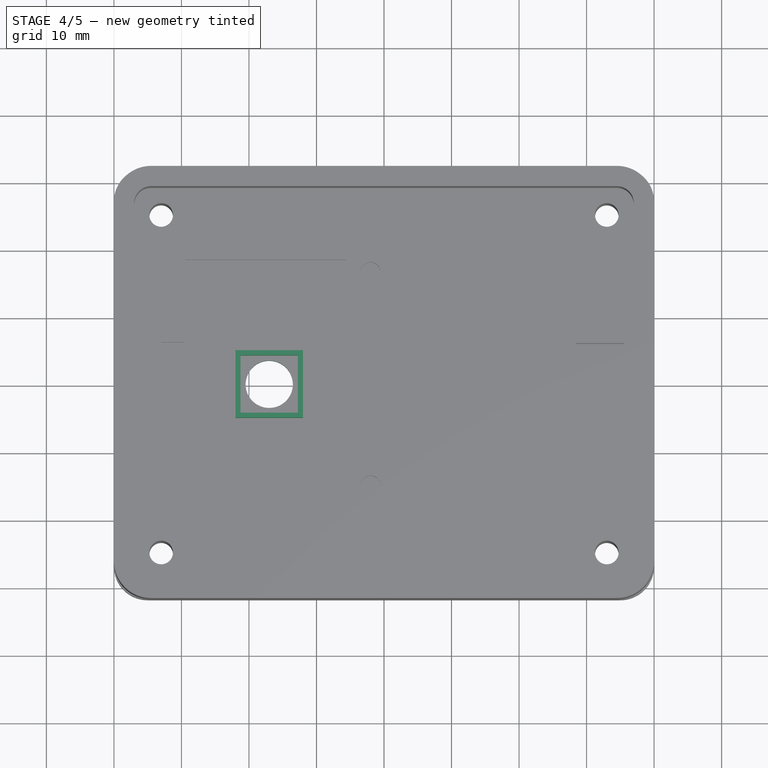
[diagram: stage 4 of 5 — top view after this stage's code; geometry added in this stage tinted green]
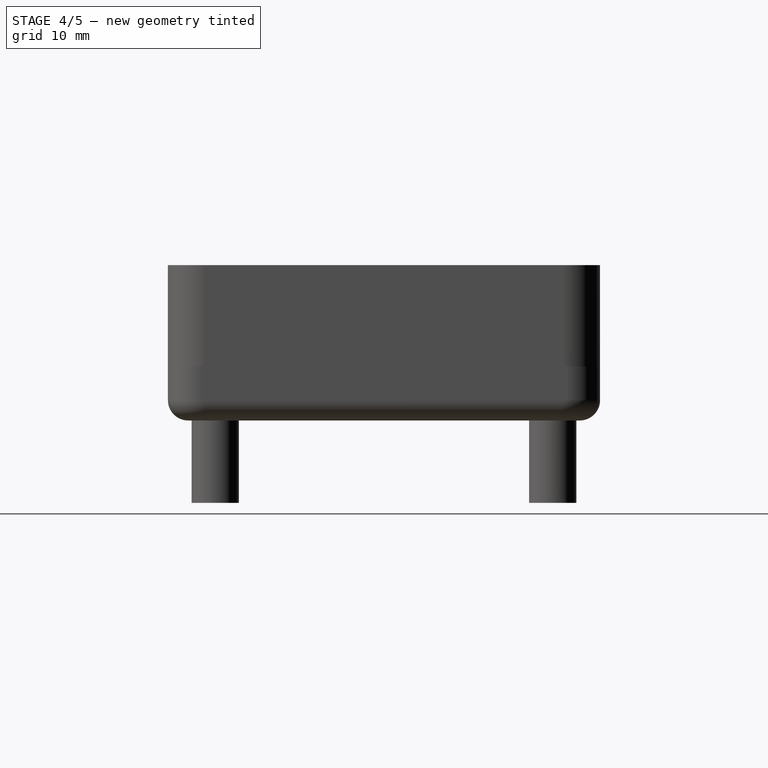
[diagram: stage 4 of 5 — right view after this stage's code; geometry added in this stage tinted green]
FEATURE [Sketcher::SketchObject] Sketch001
  FullyConstrained = true
  MapMode = 5
  Support = -> [Thickness]
  expr: Constraints[3] = Spreadsheet.screw + 3
  expr: Constraints[5] = Spreadsheet.pcblength / 2 - Spreadsheet.pcbhole_x
  expr: Constraints[6] = Spreadsheet.pcbwidth / 2 - Spreadsheet.pcbhole_y
  sketch-geometry (4):
    g0: Circle CenterX=-33 CenterY=25 CenterZ=0 NormalX=0 NormalY=0 NormalZ=1 AngleXU=0 Radius=3.25
    g1: Circle CenterX=33 CenterY=25 CenterZ=0 NormalX=0 NormalY=0 NormalZ=1 AngleXU=0 Radius=3.25
    g2: Circle CenterX=33 CenterY=-25 CenterZ=0 NormalX=0 NormalY=0 NormalZ=1 AngleXU=0 Radius=3.25
    g3: Circle CenterX=-33 CenterY=-25 CenterZ=0 NormalX=0 NormalY=0 NormalZ=1 AngleXU=0 Radius=3.25
  constraints (11):
    c: Equal(g0,g1)
    c: Equal(g0,g2)
    c: Equal(g0,g3)
    c: Diameter(g0) = 6.5
    c: Symmetric(g3,g1,g-1)
    c: DistanceX(g-1,g1) = 33
    c: DistanceY(g-1,g1) = 25
    c: Vertical(g3,g0)
    c: Vertical(g1,g2)
    c: Horizontal(g1,g0)
    c: Horizontal(g2,g3)
FEATURE [PartDesign::Pad] Pad001
  BaseFeature = -> Thickness
  Direction = (0,0,1)
  Length = 3
  Length2 = 10
  Profile = -> Sketch001
  ReferenceAxis = -> Sketch001 [N_Axis]
  Type = 0
  expr: Length = Spreadsheet.pcbdepth
FEATURE [PartDesign::Hole] Hole  label="MountingScrew"
  BaseFeature = -> Pad001
  CustomThreadClearance = 0
  Depth = 25
  DepthType = 0
  Diameter = 3.5
  DrillForDepth = false
  DrillPoint = 1
  DrillPointAngle = 118
  HoleCutCountersinkAngle = 90
  HoleCutCustomValues = false
  HoleCutDepth = 0
  HoleCutDiameter = 6.1
  HoleCutType = 0
  ModelThread = false
  Profile = -> Pad001 [Face25,Face26,Face24,Face23]
  Tapered = false
  TaperedAngle = 90
  ThreadClass = 0
  ThreadDepth = 25
  ThreadDepthType = 0
  ThreadDirection = 0
  ThreadFit = 0
  ThreadSize = 0
  ThreadType = 0
  Threaded = false
  UseCustomThreadClearance = false
  expr: Diameter = Spreadsheet.screw
FEATURE [Sketcher::SketchObject] Sketch002
  FullyConstrained = true
  MapMode = 5
  Support = -> [Hole]
  expr: Constraints[23] = Spreadsheet.pcblength / 2 - 19
  expr: Constraints[24] = Spreadsheet.pcbwidth / 2 - 28
  sketch-geometry (10):
    g0: LineSegment StartX=-21.25 StartY=4.25 StartZ=0 EndX=-21.25 EndY=-4.25 EndZ=0
    g1: LineSegment StartX=-21.25 StartY=-4.25 StartZ=0 EndX=-12.75 EndY=-4.25 EndZ=0
    g2: LineSegment StartX=-12.75 StartY=-4.25 StartZ=0 EndX=-12.75 EndY=4.25 EndZ=0
    g3: LineSegment StartX=-12.75 StartY=4.25 StartZ=0 EndX=-21.25 EndY=4.25 EndZ=0
    g4: GeomPoint X=-17 Y=0 Z=0
    g5: LineSegment StartX=-22 StartY=5 StartZ=0 EndX=-22 EndY=-5 EndZ=0
    g6: LineSegment StartX=-22 StartY=-5 StartZ=0 EndX=-12 EndY=-5 EndZ=0
    g7: LineSegment StartX=-12 StartY=-5 StartZ=0 EndX=-12 EndY=5 EndZ=0
    g8: LineSegment StartX=-12 StartY=5 StartZ=0 EndX=-22 EndY=5 EndZ=0
    g9: GeomPoint X=-17 Y=0 Z=0
  constraints (25):
    c: Coincident(g0,g1)
    c: Coincident(g1,g2)
    c: Coincident(g2,g3)
    c: Coincident(g3,g0)
    c: Horizontal(g1)
    c: Horizontal(g3)
    c: Vertical(g0)
    c: Vertical(g2)
    c: Symmetric(g1,g0,g4)
    c: Coincident(g5,g6)
    c: Coincident(g6,g7)
    c: Coincident(g7,g8)
    c: Coincident(g8,g5)
    c: Horizontal(g6)
    c: Horizontal(g8)
    c: Vertical(g5)
    c: Vertical(g7)
    c: Symmetric(g6,g5,g9)
    c: Coincident(g9,g4)
    c: Distance(g1) = 8.5
    c: DistanceX(g6,g6) = 10
    c: DistanceY(g2,g2) = 8.5
    c: DistanceY(g7,g7) = 10
    c: DistanceX(g4,g-1) = 17
    c: DistanceY(g4,g-1) = 0
FEATURE [PartDesign::Pad] Pad002  label="PressureSensorShroud"
  BaseFeature = -> Hole
  Direction = (0,0,1)
  Length = 3
  Length2 = 10
  Profile = -> Sketch002
  ReferenceAxis = -> Sketch002 [N_Axis]
  Type = 0
  expr: Length = Spreadsheet.pcbdepth
FEATURE [Sketcher::SketchObject] Sketch003
  FullyConstrained = true
  MapMode = 5
  Support = -> [Pad002]
  expr: Constraints[1] = Spreadsheet.pcblength / 2 - 19
  expr: Constraints[2] = Spreadsheet.pcbwidth / 2 - 28
  sketch-geometry (1):
    g0: Circle CenterX=-17 CenterY=0 CenterZ=0 NormalX=0 NormalY=0 NormalZ=1 AngleXU=0 Radius=3.5
  constraints (3):
    c: Diameter(g0) = 7
    c: DistanceX(g0,g-1) = 17
    c: DistanceY(g0,g-1) = 0
FEATURE [PartDesign::Hole] Hole001  label="PressureSensorHole"
  BaseFeature = -> Pad002
  CustomThreadClearance = 0
  Depth = 25
  DepthType = 0
  Diameter = 7
  DrillForDepth = false
  DrillPoint = 1
  DrillPointAngle = 118
  HoleCutCountersinkAngle = 90
  HoleCutCustomValues = false
  HoleCutDepth = 0
  HoleCutDiameter = 6.1
  HoleCutType = 0
  ModelThread = false
  Profile = -> Sketch003
  Tapered = false
  TaperedAngle = 90
  ThreadClass = 0
  ThreadDepth = 25
  ThreadDepthType = 0
  ThreadDirection = 0
  ThreadFit = 0
  ThreadSize = 0
  ThreadType = 0
  Threaded = false
  UseCustomThreadClearance = false
  expr: Diameter = 7
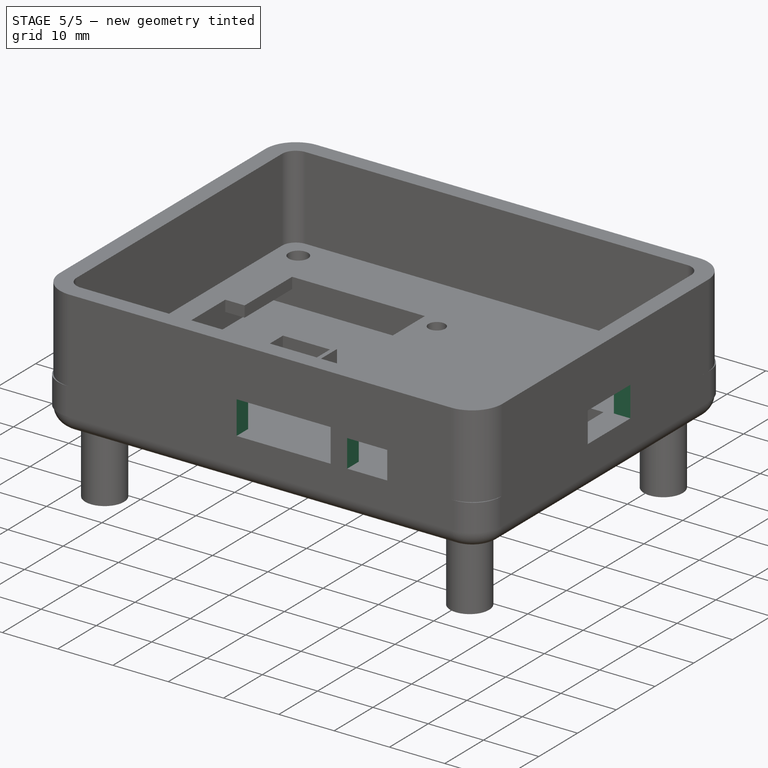
[diagram: stage 5 of 5 — iso view after this stage's code; geometry added in this stage tinted green]
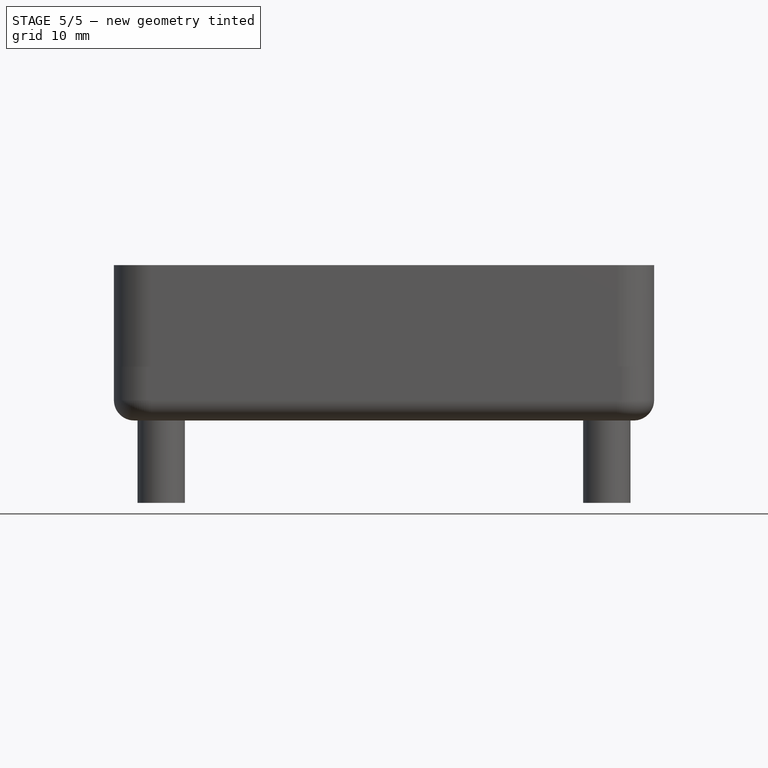
[diagram: stage 5 of 5 — front view after this stage's code; geometry added in this stage tinted green]
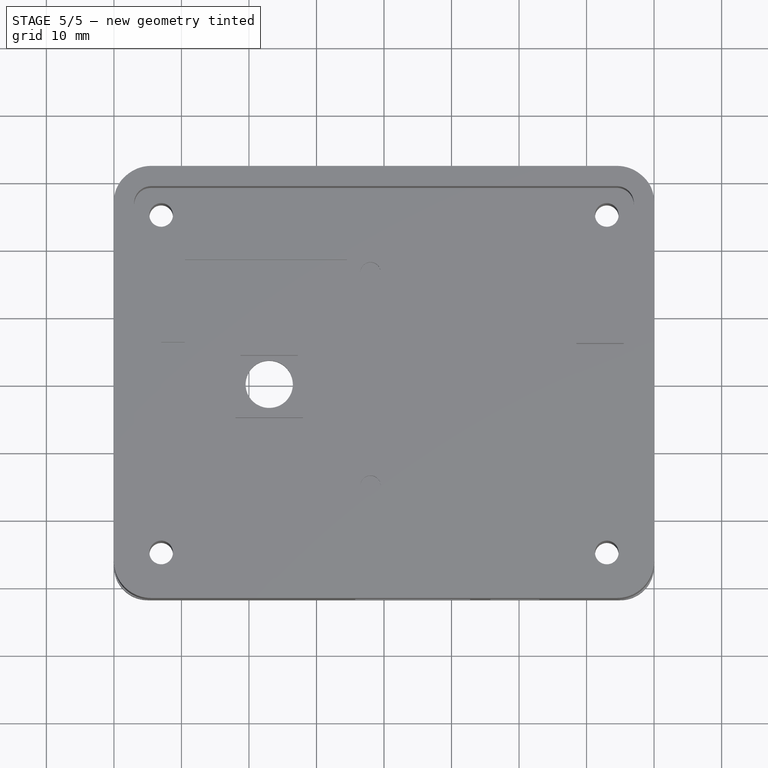
[diagram: stage 5 of 5 — top view after this stage's code; geometry added in this stage tinted green]
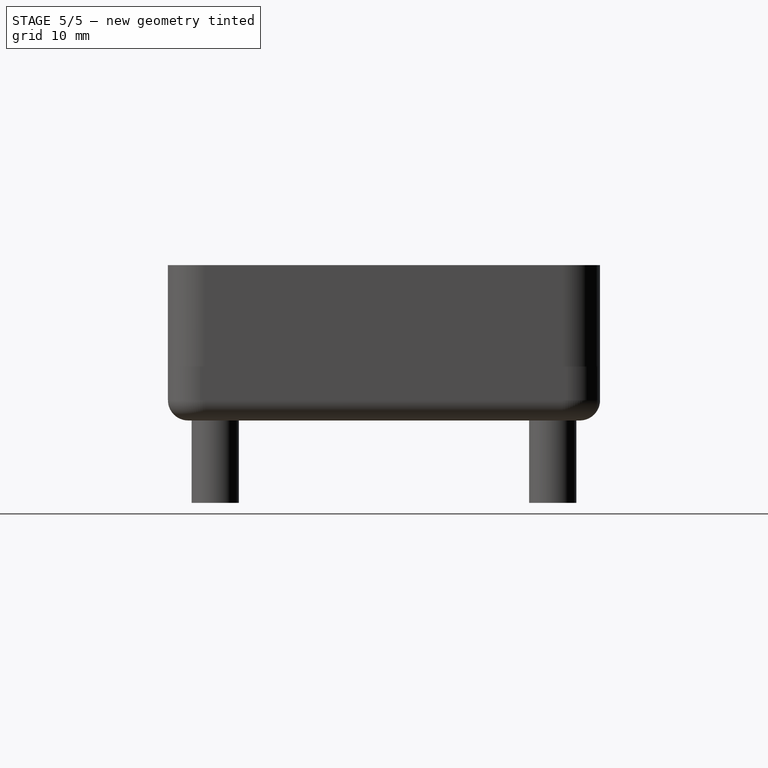
[diagram: stage 5 of 5 — right view after this stage's code; geometry added in this stage tinted green]
FEATURE [Sketcher::SketchObject] Sketch004
  FullyConstrained = true
  MapMode = 5
  Placement = pos=(0,-32,0) rot=(1,0,0;1.5708rad)
  Support = -> [Hole001]
  expr: Constraints[10] = Spreadsheet.pcbdepth + 1.5
  sketch-geometry (4):
    g0: LineSegment StartX=-4.25 StartY=4.5 StartZ=0 EndX=12.75 EndY=4.5 EndZ=0
    g1: LineSegment StartX=12.75 StartY=4.5 StartZ=0 EndX=12.75 EndY=11 EndZ=0
    g2: LineSegment StartX=12.75 StartY=11 StartZ=0 EndX=-4.25 EndY=11 EndZ=0
    g3: LineSegment StartX=-4.25 StartY=11 StartZ=0 EndX=-4.25 EndY=4.5 EndZ=0
  constraints (12):
    c: Coincident(g0,g1)
    c: Coincident(g1,g2)
    c: Coincident(g2,g3)
    c: Coincident(g3,g0)
    c: Horizontal(g0)
    c: Horizontal(g2)
    c: Vertical(g1)
    c: Vertical(g3)
    c: DistanceX(g0,g0) = 17
    c: DistanceY(g1,g1) = 6.5
    c: DistanceY(g-1,g0) = 4.5
    c: DistanceX(g0,g-1) = 4.25
FEATURE [PartDesign::Pocket] Pocket  label="VentConnectors"
  BaseFeature = -> Hole001
  Direction = (0,1,-2e-16)
  Length = 3
  Length2 = 5
  Profile = -> Sketch004
  ReferenceAxis = -> Sketch004 [N_Axis]
  Type = 0
  expr: Length = Spreadsheet.wallthickness
FEATURE [Sketcher::SketchObject] Sketch005
  FullyConstrained = true
  MapMode = 5
  Placement = pos=(0,-32,0) rot=(1,0,0;1.5708rad)
  Support = -> [Pocket]
  expr: Constraints[10] = Spreadsheet.pcbdepth + 1.5
  sketch-geometry (4):
    g0: LineSegment StartX=15.75 StartY=4.5 StartZ=0 EndX=23 EndY=4.5 EndZ=0
    g1: LineSegment StartX=23 StartY=4.5 StartZ=0 EndX=23 EndY=10 EndZ=0
    g2: LineSegment StartX=23 StartY=10 StartZ=0 EndX=15.75 EndY=10 EndZ=0
    g3: LineSegment StartX=15.75 StartY=10 StartZ=0 EndX=15.75 EndY=4.5 EndZ=0
  constraints (12):
    c: Coincident(g0,g1)
    c: Coincident(g1,g2)
    c: Coincident(g2,g3)
    c: Coincident(g3,g0)
    c: Horizontal(g0)
    c: Horizontal(g2)
    c: Vertical(g1)
    c: Vertical(g3)
    c: DistanceX(g2,g2) = 7.25
    c: DistanceY(g1,g1) = 5.5
    c: DistanceY(g-1,g0) = 4.5
    c: DistanceX(g-1,g0) = 15.75
FEATURE [PartDesign::Pocket] Pocket001  label="MotorPWR"
  BaseFeature = -> Pocket
  Direction = (0,1,-2e-16)
  Length = 3
  Length2 = 5
  Profile = -> Sketch005
  ReferenceAxis = -> Sketch005 [N_Axis]
  Type = 0
  expr: Length = Spreadsheet.wallthickness
FEATURE [Sketcher::SketchObject] Sketch006
  FullyConstrained = true
  MapMode = 5
  Placement = pos=(40,0,0) rot=(0.57735,0.57735,0.57735;2.0944rad)
  Support = -> [Pocket001]
  expr: Constraints[10] = Spreadsheet.pcbdepth + 1.5
  sketch-geometry (4):
    g0: LineSegment StartX=-4.5 StartY=4.5 StartZ=0 EndX=6.5 EndY=4.5 EndZ=0
    g1: LineSegment StartX=6.5 StartY=4.5 StartZ=0 EndX=6.5 EndY=10.5 EndZ=0
    g2: LineSegment StartX=6.5 StartY=10.5 StartZ=0 EndX=-4.5 EndY=10.5 EndZ=0
    g3: LineSegment StartX=-4.5 StartY=10.5 StartZ=0 EndX=-4.5 EndY=4.5 EndZ=0
  constraints (12):
    c: Coincident(g0,g1)
    c: Coincident(g1,g2)
    c: Coincident(g2,g3)
    c: Coincident(g3,g0)
    c: Horizontal(g0)
    c: Horizontal(g2)
    c: Vertical(g1)
    c: Vertical(g3)
    c: DistanceX(g2,g2) = 11
    c: DistanceY(g1,g1) = 6
    c: DistanceY(g-1,g0) = 4.5
    c: DistanceX(g0,g-1) = 4.5
FEATURE [PartDesign::Pocket] Pocket002  label="batteryCon"
  BaseFeature = -> Pocket001
  Direction = (-1,0,0)
  Length = 3
  Length2 = 5
  Profile = -> Sketch006
  ReferenceAxis = -> Sketch006 [N_Axis]
  Type = 0
  expr: Length = Spreadsheet.wallthickness
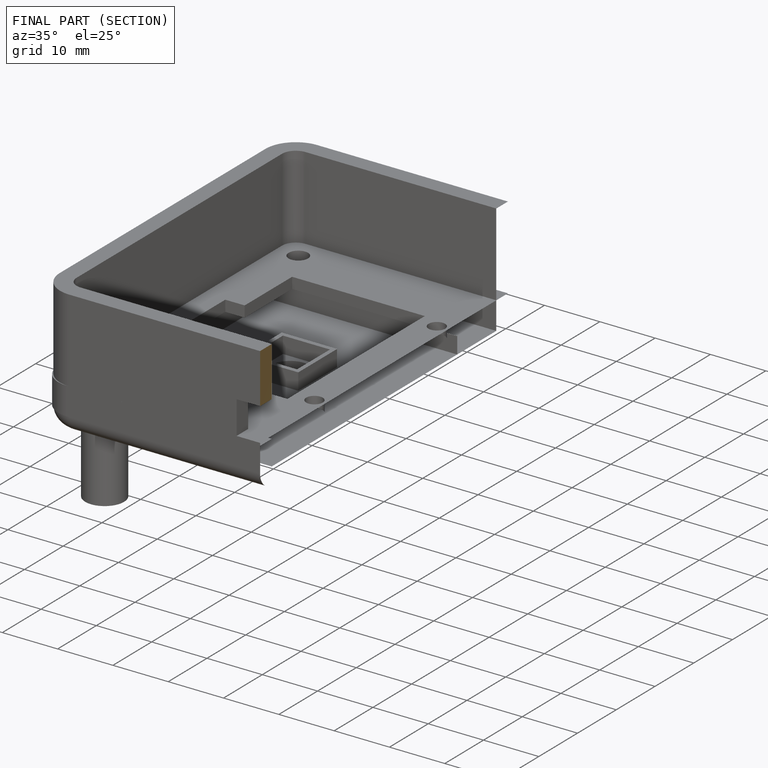
[diagram: finished part — half-section view (interior)]
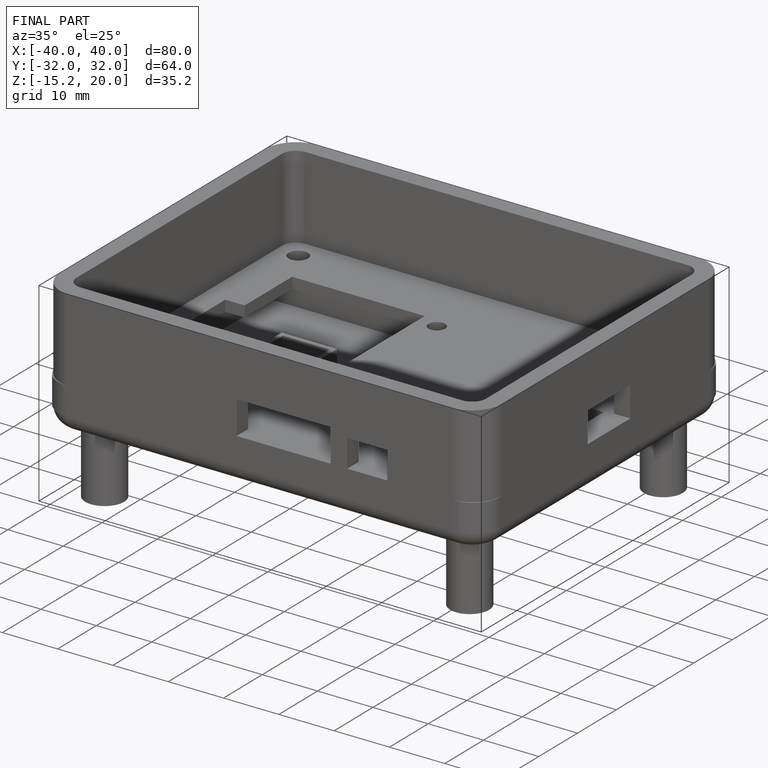
[diagram: finished part — iso view with bounding-box wireframe]
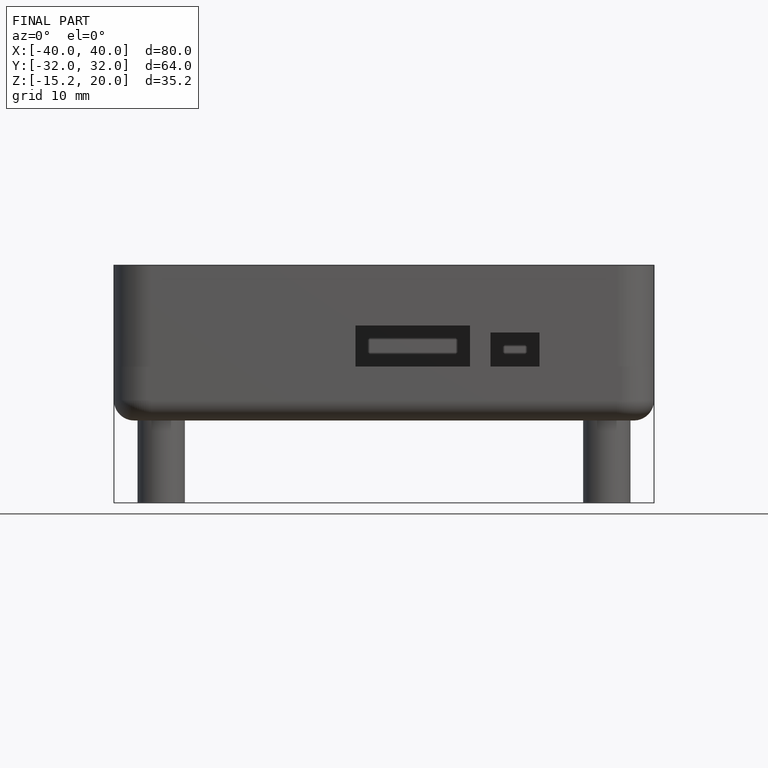
[diagram: finished part — front view with bounding-box wireframe]
